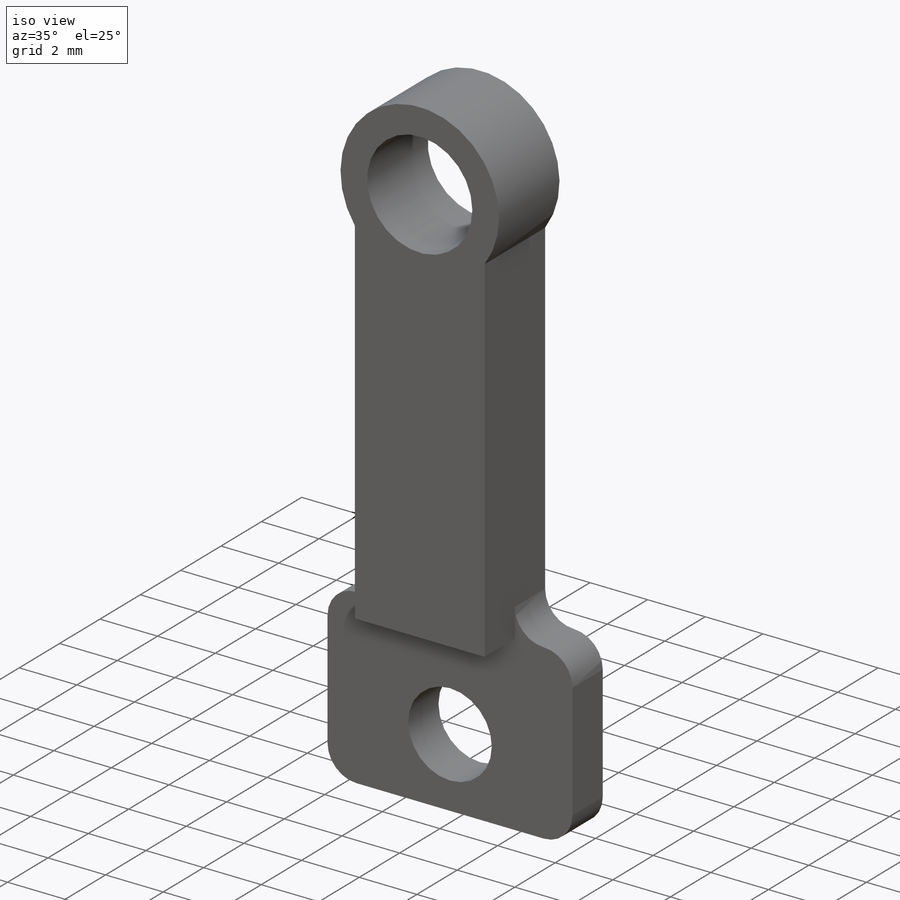
[diagram: iso view]
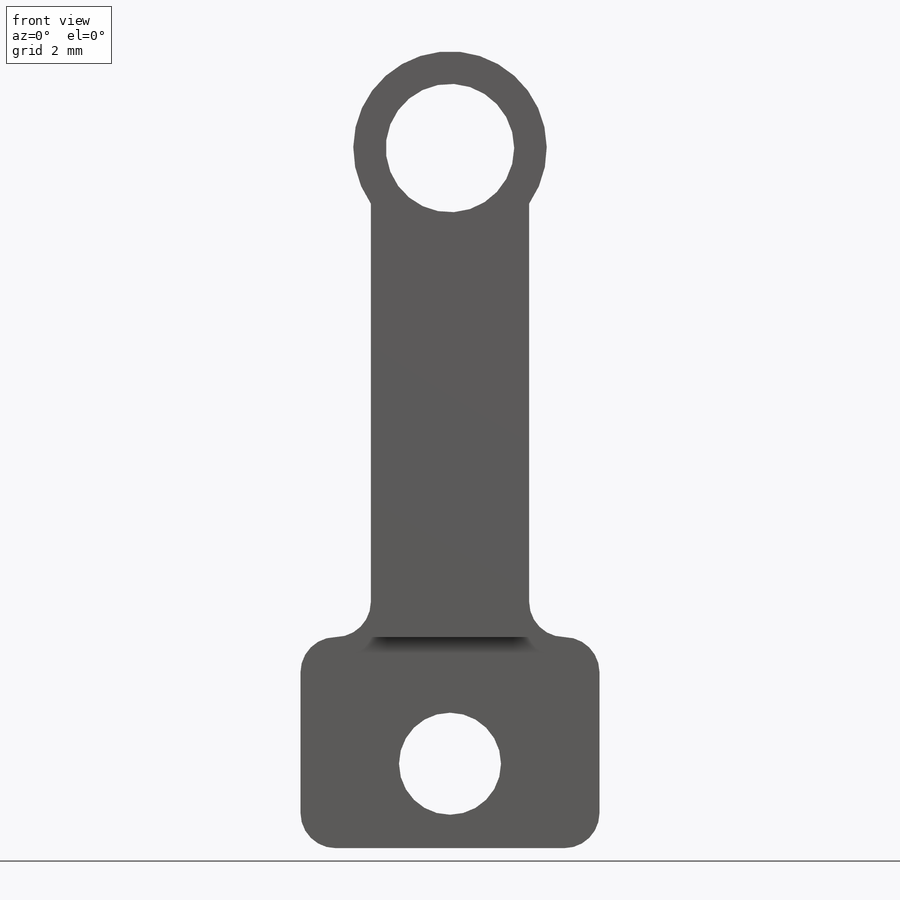
[diagram: front view]
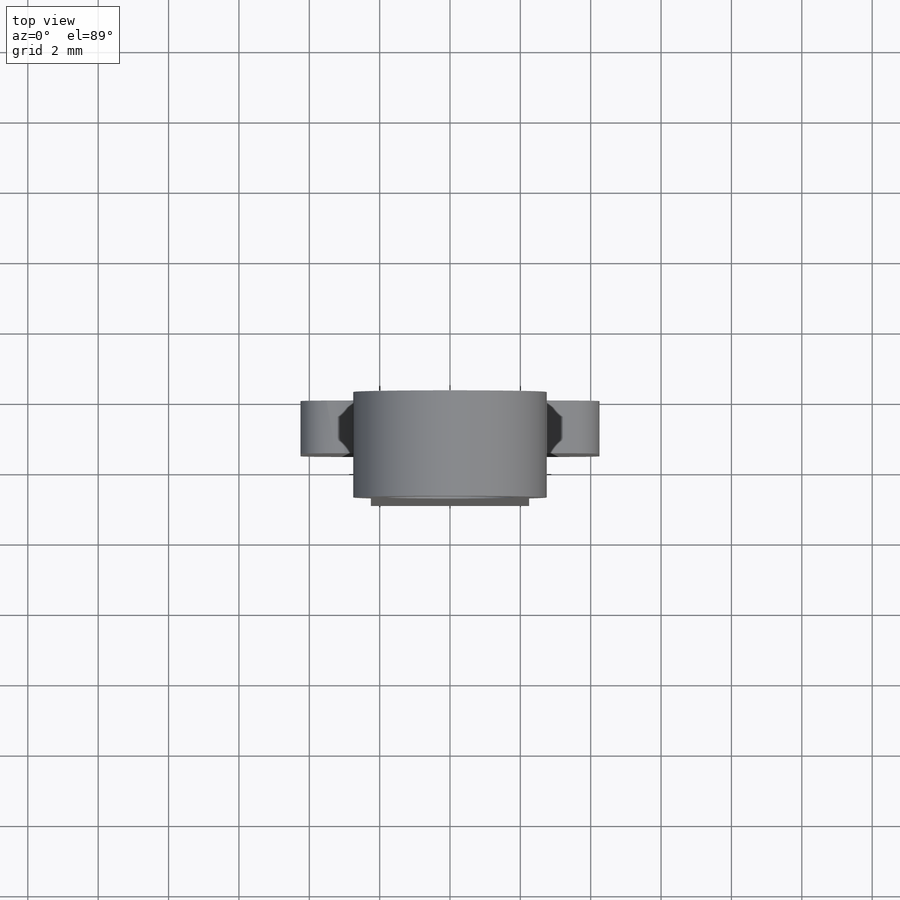
[diagram: top view]
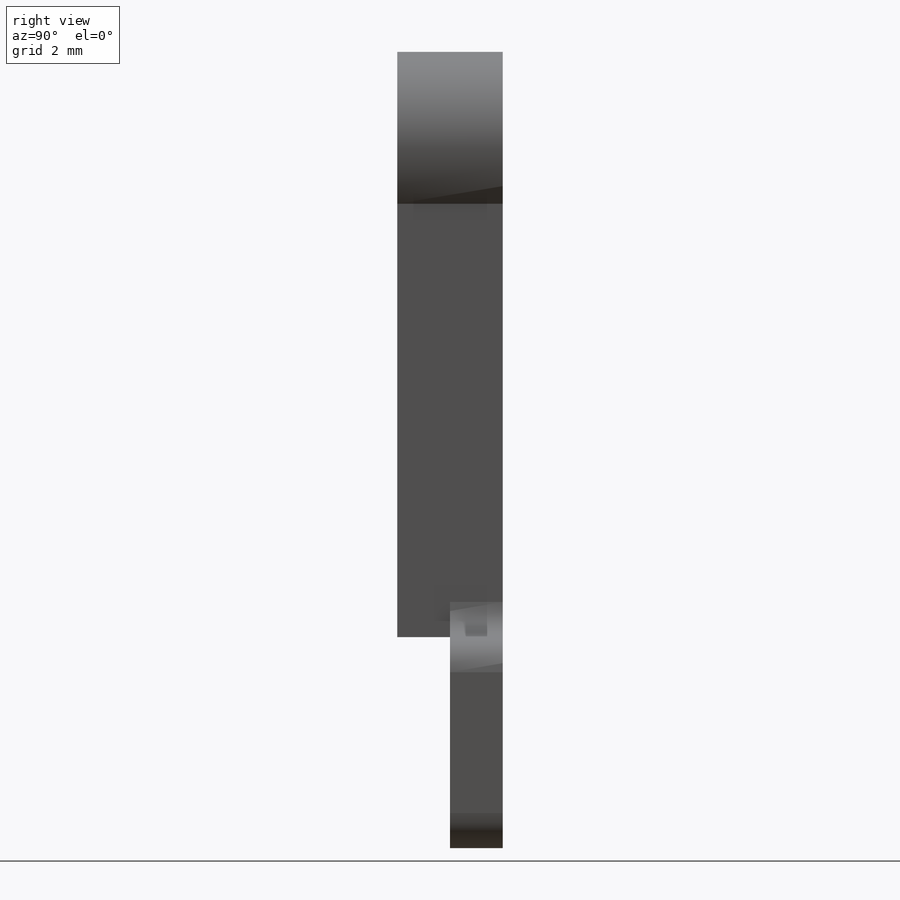
[diagram: right view]
SOLIDWORKS PART (.sldprt)
format: sldprt  version: not decoded by parser v0  size: 162,816 bytes
history: native  units: mm
features: sketch x5, cut_extrude x3, extrude x2, material x1, fillet x1 (+14 scaffold rows collapsed)
feature tree (26):
  scaffold x14  (default folders/planes/origin — collapsed)
  material  "Material <not specified>"
  sketch  "Sketch1"  dims[c1.D1=20.0mm c1.D2=4.5mm c2.D1=20.0mm c2.D3=6.0mm c2.D4=2.0mm]
  extrude  "Extrude1"  Depth=3mm
  sketch  "Sketch3"  dims[D1=5.5mm D2=0.1mm]
  extrude  "Extrude2"  [1 undecoded]
  sketch  "Sketch4"  dims[D1=3.65mm]
  cut_extrude  "Extrude3"  [1 undecoded]
  sketch  "Sketch5"  dims[c1.D3=2.9mm c1.D2=3.8mm c1.D1=4.0mm c2.D2=17.5mm c2.D1=17.5mm]
  cut_extrude  "Extrude4"  [1 undecoded]
  sketch  "Sketch6"  dims[D1=1.5mm D2=9.0mm]
  cut_extrude  "Extrude5"  Depth=6mm
  fillet  "Fillet2"  Radius=1mm
decode coverage: 8 of 11 modeling features carry decoded parameters
note: 3 parameter values undecoded
summary: no parameter record found for 3 features
note: suppression state not decoded; provenance and decode notes live in map.json
